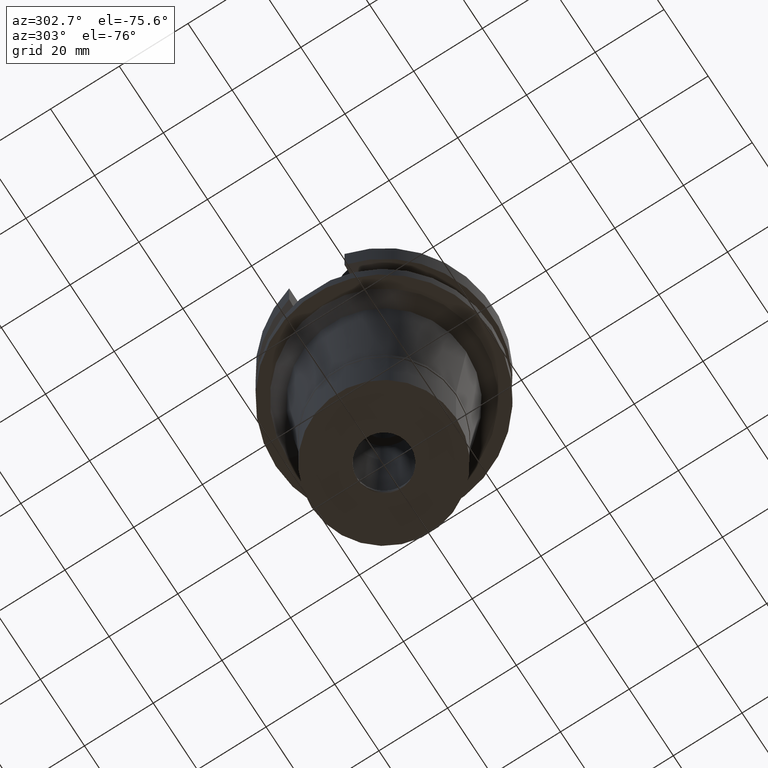
[diagram: clean part render]
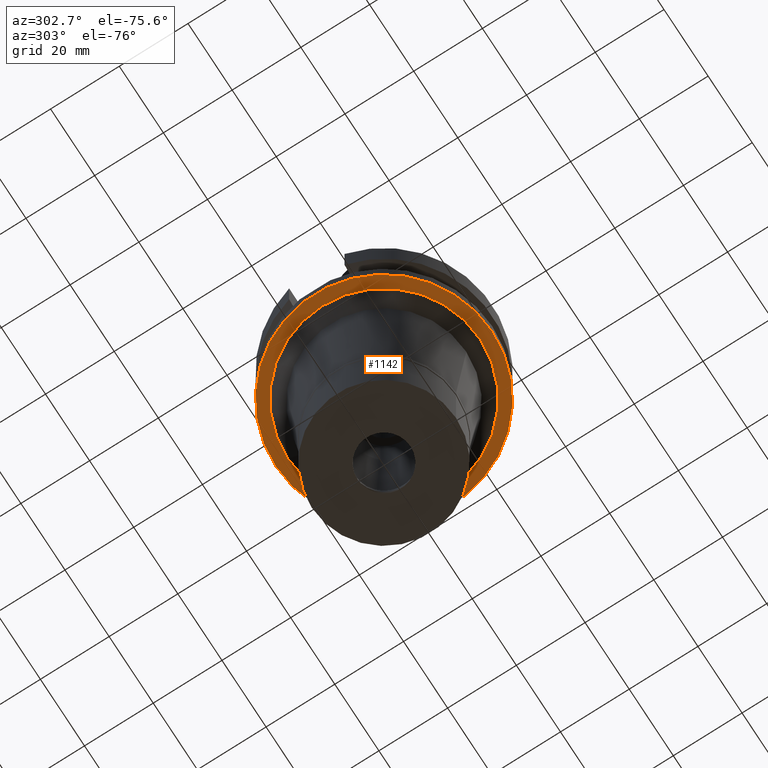
[diagram: same view with one face highlighted and labeled with its STEP entity id]
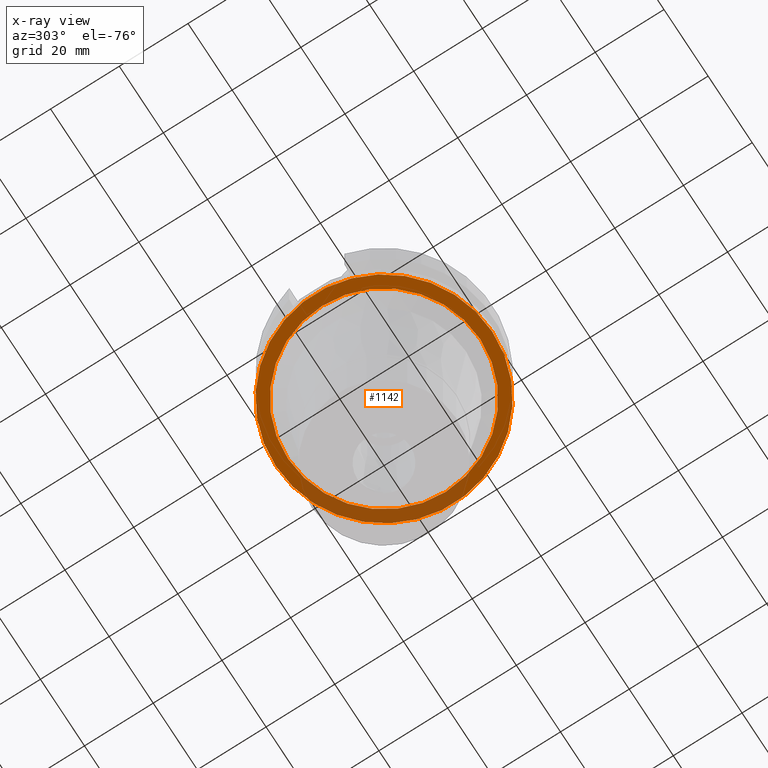
[diagram: x-ray of the same camera — body ghosted, the highlighted face saturated]
A machine part, auxiliary view. The second image highlights one B-rep face of the part: STEP entity #1142.
The next image is the same camera in x-ray: the body ghosted, the highlighted face saturated — about 24% of this face is hidden behind the body in this view.
In plain terms, the highlighted planar face has unit normal (0, 0, -1).
Its self-contained STEP definition (entity closure, byte-faithful):
#14 = CIRCLE ( 'NONE', #430, 27.96586569352999874 ) ;
#43 = EDGE_LOOP ( 'NONE', ( #111, #1455 ) ) ;
#103 = EDGE_CURVE ( 'NONE', #1903, #985, #1399, .T. ) ;
#111 = ORIENTED_EDGE ( 'NONE', *, *, #2414, .F. ) ;
#139 = CARTESIAN_POINT ( 'NONE',  ( 0.0000000000000000000, 0.0000000000000000000, -27.00000000000000000 ) ) ;
#430 = AXIS2_PLACEMENT_3D ( 'NONE', #2709, #818, #2453 ) ;
#436 = AXIS2_PLACEMENT_3D ( 'NONE', #1105, #3044, #871 ) ;
#524 = CARTESIAN_POINT ( 'NONE',  ( 0.0000000000000000000, 2.116128436586999977E-14, -27.00000000000000000 ) ) ;
#607 = FACE_OUTER_BOUND ( 'NONE', #1094, .T. ) ;
#757 = DIRECTION ( 'NONE',  ( 0.0000000000000000000, 0.0000000000000000000, 1.000000000000000000 ) ) ;
#761 = DIRECTION ( 'NONE',  ( 0.0000000000000000000, -1.000000000000000000, 0.0000000000000000000 ) ) ;
#818 = DIRECTION ( 'NONE',  ( 0.0000000000000000000, 0.0000000000000000000, -1.000000000000000000 ) ) ;
#871 = DIRECTION ( 'NONE',  ( 0.0000000000000000000, -1.000000000000000000, 0.0000000000000000000 ) ) ;
#924 = EDGE_CURVE ( 'NONE', #985, #1903, #2526, .T. ) ;
#985 = VERTEX_POINT ( 'NONE', #2552 ) ;
#1094 = EDGE_LOOP ( 'NONE', ( #1698, #2480 ) ) ;
#1105 = CARTESIAN_POINT ( 'NONE',  ( 0.0000000000000000000, 0.0000000000000000000, -27.00000000000000000 ) ) ;
#1106 = AXIS2_PLACEMENT_3D ( 'NONE', #139, #2569, #2326 ) ;
#1142 = ADVANCED_FACE ( 'NONE', ( #607, #1574 ), #1588, .T. ) ;
#1159 = AXIS2_PLACEMENT_3D ( 'NONE', #524, #757, #1720 ) ;
#1399 = CIRCLE ( 'NONE', #1544, 31.50000000000000000 ) ;
#1455 = ORIENTED_EDGE ( 'NONE', *, *, #2584, .F. ) ;
#1544 = AXIS2_PLACEMENT_3D ( 'NONE', #2459, #2211, #761 ) ;
#1574 = FACE_BOUND ( 'NONE', #43, .T. ) ;
#1588 = PLANE ( 'NONE',  #1106 ) ;
#1698 = ORIENTED_EDGE ( 'NONE', *, *, #924, .F. ) ;
#1720 = DIRECTION ( 'NONE',  ( 0.0000000000000000000, 1.000000000000000000, 0.0000000000000000000 ) ) ;
#1903 = VERTEX_POINT ( 'NONE', #2208 ) ;
#1930 = VERTEX_POINT ( 'NONE', #2475 ) ;
#2208 = CARTESIAN_POINT ( 'NONE',  ( 0.0000000000000000000, -31.50000000000000000, -27.00000000000000000 ) ) ;
#2211 = DIRECTION ( 'NONE',  ( 0.0000000000000000000, 0.0000000000000000000, 1.000000000000000000 ) ) ;
#2309 = CIRCLE ( 'NONE', #436, 27.96586569352999874 ) ;
#2326 = DIRECTION ( 'NONE',  ( 0.0000000000000000000, -1.000000000000000000, 0.0000000000000000000 ) ) ;
#2398 = CARTESIAN_POINT ( 'NONE',  ( 0.0000000000000000000, 27.96586569352999874, -27.00000000000000000 ) ) ;
#2414 = EDGE_CURVE ( 'NONE', #3151, #1930, #14, .T. ) ;
#2453 = DIRECTION ( 'NONE',  ( 0.0000000000000000000, 1.000000000000000000, 0.0000000000000000000 ) ) ;
#2459 = CARTESIAN_POINT ( 'NONE',  ( 0.0000000000000000000, 2.116128436586999977E-14, -27.00000000000000000 ) ) ;
#2475 = CARTESIAN_POINT ( 'NONE',  ( 0.0000000000000000000, -27.96586569352999874, -27.00000000000000000 ) ) ;
#2480 = ORIENTED_EDGE ( 'NONE', *, *, #103, .F. ) ;
#2526 = CIRCLE ( 'NONE', #1159, 31.50000000000000000 ) ;
#2552 = CARTESIAN_POINT ( 'NONE',  ( 0.0000000000000000000, 31.50000000000000000, -27.00000000000000000 ) ) ;
#2569 = DIRECTION ( 'NONE',  ( 0.0000000000000000000, 0.0000000000000000000, -1.000000000000000000 ) ) ;
#2584 = EDGE_CURVE ( 'NONE', #1930, #3151, #2309, .T. ) ;
#2709 = CARTESIAN_POINT ( 'NONE',  ( 0.0000000000000000000, 0.0000000000000000000, -27.00000000000000000 ) ) ;
#3044 = DIRECTION ( 'NONE',  ( 0.0000000000000000000, 0.0000000000000000000, -1.000000000000000000 ) ) ;
#3151 = VERTEX_POINT ( 'NONE', #2398 ) ;